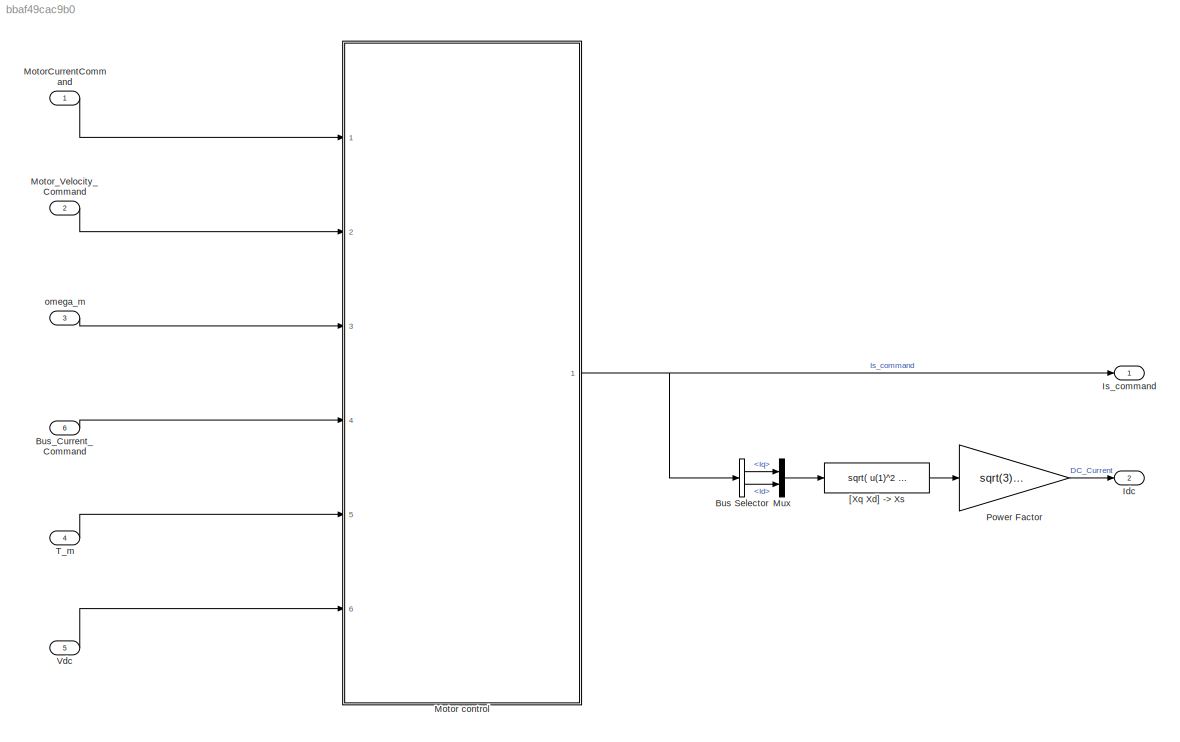
MODEL slx_bbaf49cac9b0
KIND model
WORKSPACE source: external: MAT-File  (data not in archive)
BLOCK [BusSelector] Bus Selector
  OutputSignals = Iq,Id
  Ports = [1, 2]
BLOCK [Inport] Bus_Current_Command
  IconDisplay = Port number
  Port = 6
BLOCK [Outport] Idc
  IconDisplay = Port number
  Port = 2
BLOCK [Outport] Is_command
  BusOutputAsStruct = on
  IconDisplay = Port number
  OutDataTypeStr = Bus: Is_bus
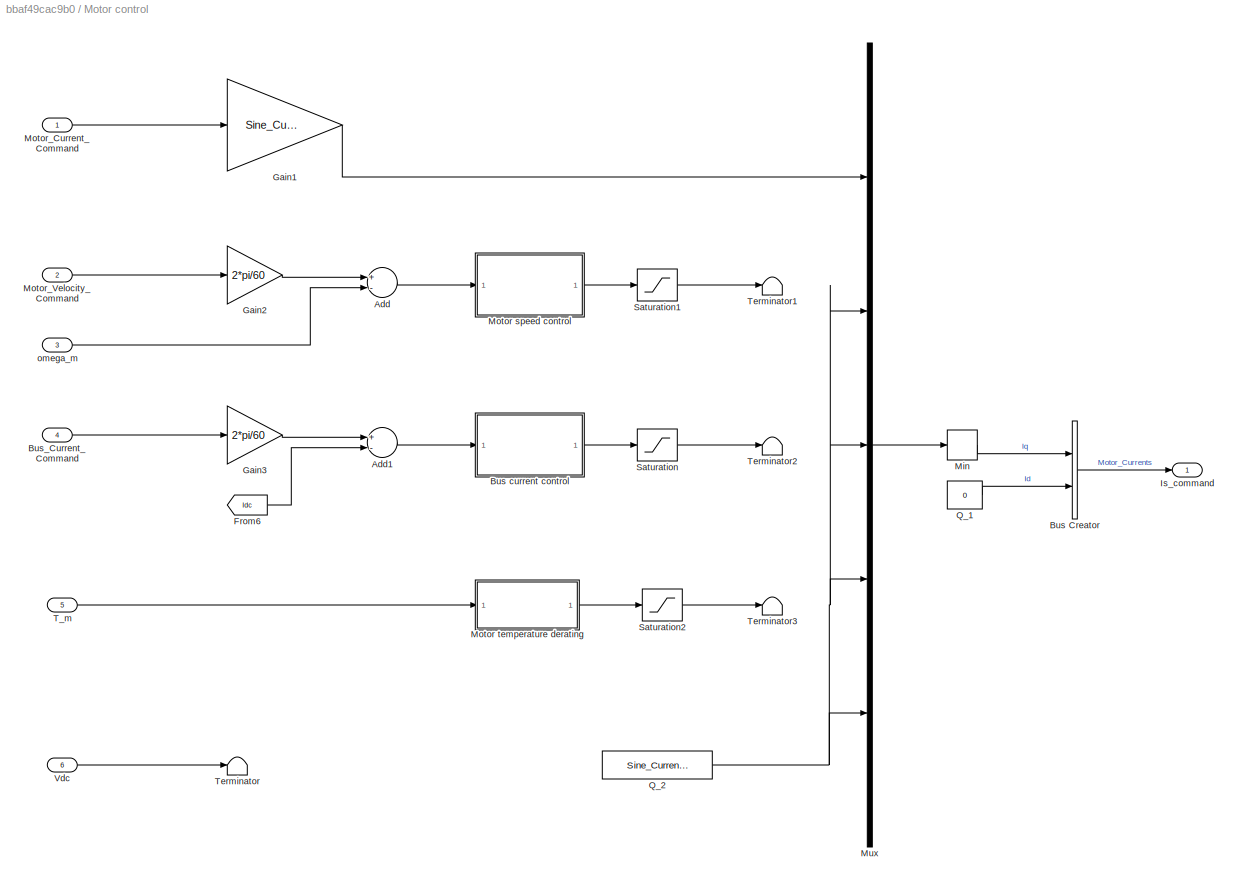
BLOCK [SubSystem] Motor control
  Ports = [6, 1]
  RequestExecContextInheritance = off
BLOCK [Sum] Motor control/Add
  InputSameDT = off
  Inputs = +-
  OutDataTypeStr = Inherit: Inherit via internal rule
  Ports = [2, 1]
  SaturateOnIntegerOverflow = off
BLOCK [Sum] Motor control/Add1
  InputSameDT = off
  Inputs = +-
  OutDataTypeStr = Inherit: Inherit via internal rule
  Ports = [2, 1]
  SaturateOnIntegerOverflow = off
BLOCK [BusCreator] Motor control/Bus Creator
  DisplayOption = bar
  Inputs = 'Iq','Id'
  NonVirtualBus = on
  OutDataTypeStr = Bus: Is_bus
  Ports = [2, 1]
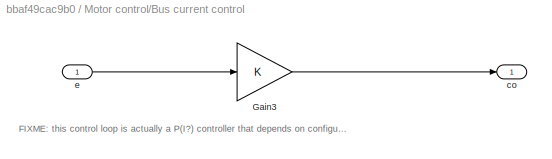
BLOCK [SubSystem] Motor control/Bus current control
  Ports = [1, 1]
  RequestExecContextInheritance = off
BLOCK [Gain] Motor control/Bus current control/Gain3
  OutDataTypeStr = Inherit: Inherit via internal rule
  ParamDataTypeStr = Inherit: Inherit via internal rule
  SaturateOnIntegerOverflow = off
BLOCK [Outport] Motor control/Bus current control/co
  IconDisplay = Port number
BLOCK [Inport] Motor control/Bus current control/e 
  IconDisplay = Port number
BLOCK [Inport] Motor control/Bus_Current_Command
  IconDisplay = Port number
  Port = 4
BLOCK [From] Motor control/From6
  GotoTag = Idc
BLOCK [Gain] Motor control/Gain1
  Gain = Sine_Current_Limit
  OutDataTypeStr = Inherit: Inherit via internal rule
  ParamDataTypeStr = Inherit: Inherit via internal rule
  SaturateOnIntegerOverflow = off
BLOCK [Gain] Motor control/Gain2
  Gain = 2*pi/60
  OutDataTypeStr = Inherit: Inherit via internal rule
  ParamDataTypeStr = Inherit: Inherit via internal rule
  SaturateOnIntegerOverflow = off
BLOCK [Gain] Motor control/Gain3
  Gain = 2*pi/60
  OutDataTypeStr = Inherit: Inherit via internal rule
  ParamDataTypeStr = Inherit: Inherit via internal rule
  SaturateOnIntegerOverflow = off
BLOCK [Outport] Motor control/Is_command
  IconDisplay = Port number
  OutDataTypeStr = Bus: Is_bus
BLOCK [MinMax] Motor control/Min
  InputSameDT = off
  Ports = [1, 1]
  SaturateOnIntegerOverflow = off
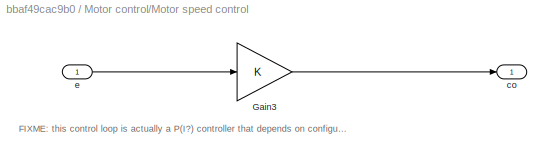
BLOCK [SubSystem] Motor control/Motor speed control
  Ports = [1, 1]
  RequestExecContextInheritance = off
BLOCK [Gain] Motor control/Motor speed control/Gain3
  OutDataTypeStr = Inherit: Inherit via internal rule
  ParamDataTypeStr = Inherit: Inherit via internal rule
  SaturateOnIntegerOverflow = off
BLOCK [Outport] Motor control/Motor speed control/co
  IconDisplay = Port number
BLOCK [Inport] Motor control/Motor speed control/e 
  IconDisplay = Port number
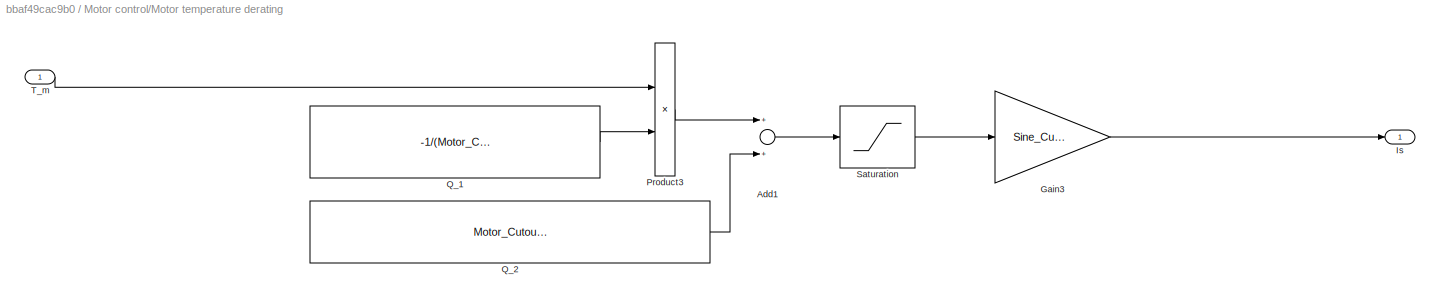
BLOCK [SubSystem] Motor control/Motor temperature derating 
  Ports = [1, 1]
  RequestExecContextInheritance = off
BLOCK [Sum] Motor control/Motor temperature derating /Add1
  InputSameDT = off
  OutDataTypeStr = Inherit: Inherit via internal rule
  Ports = [2, 1]
  SaturateOnIntegerOverflow = off
BLOCK [Gain] Motor control/Motor temperature derating /Gain3
  Gain = Sine_Current_Limit
  OutDataTypeStr = Inherit: Inherit via internal rule
  ParamDataTypeStr = Inherit: Inherit via internal rule
  SaturateOnIntegerOverflow = off
BLOCK [Outport] Motor control/Motor temperature derating /Is
  IconDisplay = Port number
BLOCK [Product] Motor control/Motor temperature derating /Product3
  InputSameDT = off
  OutDataTypeStr = Inherit: Inherit via internal rule
  Ports = [2, 1]
  RndMeth = Floor
  SaturateOnIntegerOverflow = off
BLOCK [Constant] Motor control/Motor temperature derating /Q_1
  Value = -1/(Motor_Cutout_Temperature - Motor_Ramp_Temperature)
BLOCK [Constant] Motor control/Motor temperature derating /Q_2
  Value = Motor_Cutout_Temperature/(Motor_Cutout_Temperature - Motor_Ramp_Temperature)
BLOCK [Saturate] Motor control/Motor temperature derating /Saturation
  InputPortMap = u0
  LowerLimit = 0
  Ports = [1, 1]
  UpperLimit = 1
BLOCK [Inport] Motor control/Motor temperature derating /T_m
  IconDisplay = Port number
BLOCK [Inport] Motor control/Motor_Current_Command
  IconDisplay = Port number
BLOCK [Inport] Motor control/Motor_Velocity_Command
  IconDisplay = Port number
  Port = 2
BLOCK [Mux] Motor control/Mux
  DisplayOption = bar
  Inputs = 5
  Ports = [5, 1]
BLOCK [Constant] Motor control/Q_1
  Value = 0
BLOCK [Constant] Motor control/Q_2
  Value = Sine_Current_Limit
BLOCK [Saturate] Motor control/Saturation
  InputPortMap = u0
  LowerLimit = -Sine_Current_Limit
  Ports = [1, 1]
  UpperLimit = Sine_Current_Limit
BLOCK [Saturate] Motor control/Saturation1
  InputPortMap = u0
  LowerLimit = -Sine_Current_Limit
  Ports = [1, 1]
  UpperLimit = Sine_Current_Limit
BLOCK [Saturate] Motor control/Saturation2
  InputPortMap = u0
  LowerLimit = -Sine_Current_Limit
  Ports = [1, 1]
  UpperLimit = Sine_Current_Limit
BLOCK [Inport] Motor control/T_m
  IconDisplay = Port number
  Port = 5
BLOCK [Terminator] Motor control/Terminator
BLOCK [Terminator] Motor control/Terminator1
BLOCK [Terminator] Motor control/Terminator2
BLOCK [Terminator] Motor control/Terminator3
BLOCK [Inport] Motor control/Vdc
  IconDisplay = Port number
  Port = 6
BLOCK [Inport] Motor control/omega_m
  IconDisplay = Port number
  Port = 3
BLOCK [Inport] MotorCurrentCommand
  IconDisplay = Port number
BLOCK [Inport] Motor_Velocity_Command
  IconDisplay = Port number
  Port = 2
BLOCK [Mux] Mux
  DisplayOption = bar
  Inputs = 2
  Ports = [2, 1]
BLOCK [Gain] Power Factor
  Gain = sqrt(3)/sqrt(2)
  OutDataTypeStr = Inherit: Inherit via internal rule
  ParamDataTypeStr = Inherit: Inherit via internal rule
  SaturateOnIntegerOverflow = off
BLOCK [Inport] T_m
  IconDisplay = Port number
  Port = 4
BLOCK [Inport] Vdc
  IconDisplay = Port number
  Port = 5
BLOCK [Fcn] [Xq Xd] -> Xs
  Expr = sqrt( u(1)^2 + u(2)^2 )
BLOCK [Inport] omega_m
  IconDisplay = Port number
  Port = 3
ANNOTATION Motor control/Bus current control: FIXME: this control loop is actually a P(I?) controller that depends on configured vehicle mass
ANNOTATION Motor control/Motor speed control: FIXME: this control loop is actually a P(I?) controller that depends on configured vehicle mass
LINE Bus Selector:1 -> Mux:1
LINE Bus Selector:2 -> Mux:2
LINE Bus_Current_Command:1 -> Motor control:4
LINE Motor control/Add1:1 -> Motor control/Bus current control:1
LINE Motor control/Add:1 -> Motor control/Motor speed control:1
LINE Motor control/Bus Creator:1 -> Motor control/Is_command:1
LINE Motor control/Bus current control/Gain3:1 -> Motor control/Bus current control/co:1
LINE Motor control/Bus current control/e :1 -> Motor control/Bus current control/Gain3:1
LINE Motor control/Bus current control:1 -> Motor control/Saturation:1
LINE Motor control/Bus_Current_Command:1 -> Motor control/Gain3:1
LINE Motor control/From6:1 -> Motor control/Add1:2
LINE Motor control/Gain1:1 -> Motor control/Mux:1
LINE Motor control/Gain2:1 -> Motor control/Add:1
LINE Motor control/Gain3:1 -> Motor control/Add1:1
LINE Motor control/Min:1 -> Motor control/Bus Creator:1
LINE Motor control/Motor speed control/Gain3:1 -> Motor control/Motor speed control/co:1
LINE Motor control/Motor speed control/e :1 -> Motor control/Motor speed control/Gain3:1
LINE Motor control/Motor speed control:1 -> Motor control/Saturation1:1
LINE Motor control/Motor temperature derating /Add1:1 -> Motor control/Motor temperature derating /Saturation:1
LINE Motor control/Motor temperature derating /Gain3:1 -> Motor control/Motor temperature derating /Is:1
LINE Motor control/Motor temperature derating /Product3:1 -> Motor control/Motor temperature derating /Add1:1
LINE Motor control/Motor temperature derating /Q_1:1 -> Motor control/Motor temperature derating /Product3:2
LINE Motor control/Motor temperature derating /Q_2:1 -> Motor control/Motor temperature derating /Add1:2
LINE Motor control/Motor temperature derating /Saturation:1 -> Motor control/Motor temperature derating /Gain3:1
LINE Motor control/Motor temperature derating /T_m:1 -> Motor control/Motor temperature derating /Product3:1
LINE Motor control/Motor temperature derating :1 -> Motor control/Saturation2:1
LINE Motor control/Motor_Current_Command:1 -> Motor control/Gain1:1
LINE Motor control/Motor_Velocity_Command:1 -> Motor control/Gain2:1
LINE Motor control/Mux:1 -> Motor control/Min:1
LINE Motor control/Q_1:1 -> Motor control/Bus Creator:2
NET Motor control/Q_2:1 -> Motor control/Mux:2, Motor control/Mux:3, Motor control/Mux:4, Motor control/Mux:5
LINE Motor control/Saturation1:1 -> Motor control/Terminator1:1
LINE Motor control/Saturation2:1 -> Motor control/Terminator3:1
LINE Motor control/Saturation:1 -> Motor control/Terminator2:1
LINE Motor control/T_m:1 -> Motor control/Motor temperature derating :1
LINE Motor control/Vdc:1 -> Motor control/Terminator:1
LINE Motor control/omega_m:1 -> Motor control/Add:2
NET Motor control:1 -> Bus Selector:1, Is_command:1
LINE MotorCurrentCommand:1 -> Motor control:1
LINE Motor_Velocity_Command:1 -> Motor control:2
LINE Mux:1 -> [Xq Xd] -> Xs:1
LINE Power Factor:1 -> Idc:1
LINE T_m:1 -> Motor control:5
LINE Vdc:1 -> Motor control:6
LINE [Xq Xd] -> Xs:1 -> Power Factor:1
LINE omega_m:1 -> Motor control:3
note: NET lines group one-source signal fan-out (src -> all destinations, sorted); 1:1 wires keep LINE
